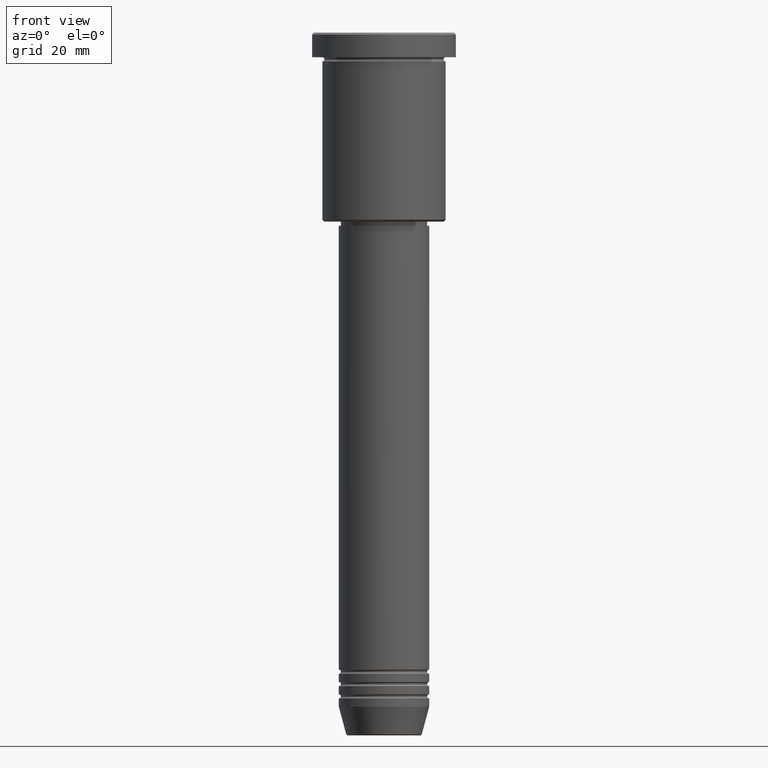
[diagram: clean part render]
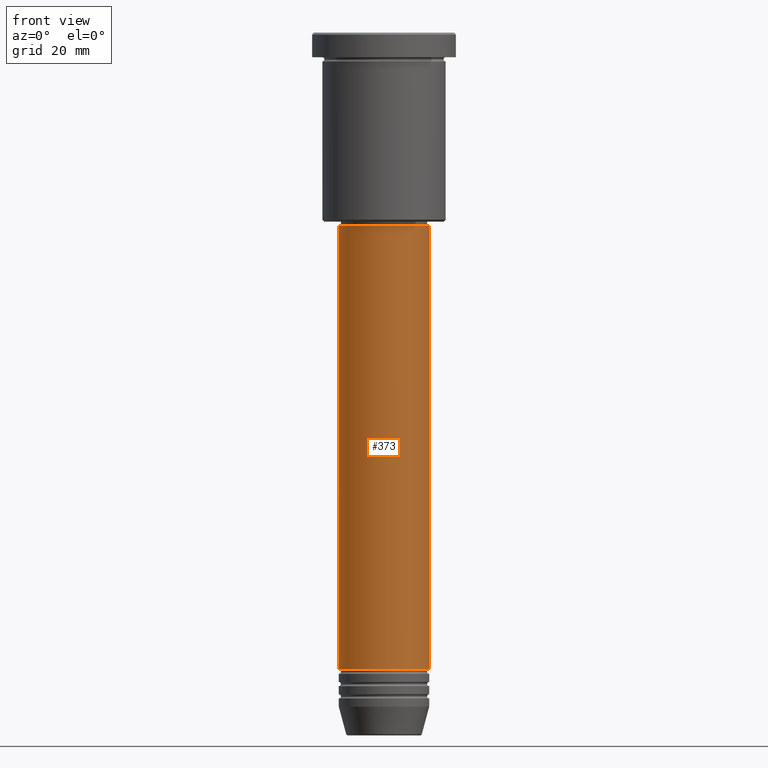
[diagram: same view with one face highlighted and labeled with its STEP entity id]
A machine part, front view. The second image highlights one B-rep face of the part: STEP entity #373.
In plain terms, the highlighted cylindrical surface (partial cylindrical patch) has radius 11 mm, axis along (-0, -0, 1).
Its self-contained STEP definition (entity closure, byte-faithful):
#10 = DIRECTION ( 'NONE',  ( -0.000000000000000000, -0.000000000000000000, 1.000000000000000000 ) ) ;
#16 = CARTESIAN_POINT ( 'NONE',  ( 11.00000000000000000, 0.000000000000000000, 0.000000000000000000 ) ) ;
#25 = DIRECTION ( 'NONE',  ( -0.000000000000000000, -0.000000000000000000, 1.000000000000000000 ) ) ;
#32 = ORIENTED_EDGE ( 'NONE', *, *, #535, .F. ) ;
#185 = LINE ( 'NONE', #16, #390 ) ;
#219 = CARTESIAN_POINT ( 'NONE',  ( 0.000000000000000000, 0.000000000000000000, -154.9999999999999716 ) ) ;
#279 = VERTEX_POINT ( 'NONE', #656 ) ;
#292 = DIRECTION ( 'NONE',  ( 1.000000000000000000, 0.000000000000000000, 0.000000000000000000 ) ) ;
#309 = CIRCLE ( 'NONE', #526, 11.00000000000000000 ) ;
#315 = DIRECTION ( 'NONE',  ( 1.000000000000000000, 0.000000000000000000, 0.000000000000000000 ) ) ;
#373 = ADVANCED_FACE ( 'NONE', ( #1087 ), #829, .T. ) ;
#390 = VECTOR ( 'NONE', #745, 1000.000000000000000 ) ;
#395 = EDGE_LOOP ( 'NONE', ( #32, #752, #1164, #519 ) ) ;
#396 = EDGE_CURVE ( 'NONE', #279, #805, #185, .T. ) ;
#455 = EDGE_CURVE ( 'NONE', #673, #805, #309, .T. ) ;
#463 = EDGE_CURVE ( 'NONE', #917, #279, #807, .T. ) ;
#472 = DIRECTION ( 'NONE',  ( 1.000000000000000000, 0.000000000000000000, 0.000000000000000000 ) ) ;
#486 = CARTESIAN_POINT ( 'NONE',  ( -11.00000000000000000, 1.347111479062088405E-15, -47.00000000000000711 ) ) ;
#487 = AXIS2_PLACEMENT_3D ( 'NONE', #219, #1043, #315 ) ;
#494 = CARTESIAN_POINT ( 'NONE',  ( 11.00000000000000000, 0.000000000000000000, -47.00000000000000711 ) ) ;
#519 = ORIENTED_EDGE ( 'NONE', *, *, #455, .F. ) ;
#526 = AXIS2_PLACEMENT_3D ( 'NONE', #963, #25, #292 ) ;
#535 = EDGE_CURVE ( 'NONE', #917, #673, #1039, .T. ) ;
#656 = CARTESIAN_POINT ( 'NONE',  ( 11.00000000000000000, 0.000000000000000000, -154.9999999999999716 ) ) ;
#660 = VECTOR ( 'NONE', #1034, 1000.000000000000000 ) ;
#673 = VERTEX_POINT ( 'NONE', #486 ) ;
#736 = AXIS2_PLACEMENT_3D ( 'NONE', #843, #10, #472 ) ;
#745 = DIRECTION ( 'NONE',  ( -0.000000000000000000, -0.000000000000000000, 1.000000000000000000 ) ) ;
#752 = ORIENTED_EDGE ( 'NONE', *, *, #463, .T. ) ;
#775 = CARTESIAN_POINT ( 'NONE',  ( -11.00000000000000000, 1.347111479062088405E-15, 0.000000000000000000 ) ) ;
#805 = VERTEX_POINT ( 'NONE', #494 ) ;
#807 = CIRCLE ( 'NONE', #487, 11.00000000000000000 ) ;
#828 = CARTESIAN_POINT ( 'NONE',  ( -11.00000000000000000, 1.347111479062088405E-15, -154.9999999999999716 ) ) ;
#829 = CYLINDRICAL_SURFACE ( 'NONE', #736, 11.00000000000000000 ) ;
#843 = CARTESIAN_POINT ( 'NONE',  ( 0.000000000000000000, 0.000000000000000000, 0.000000000000000000 ) ) ;
#917 = VERTEX_POINT ( 'NONE', #828 ) ;
#963 = CARTESIAN_POINT ( 'NONE',  ( 0.000000000000000000, 0.000000000000000000, -47.00000000000000711 ) ) ;
#1034 = DIRECTION ( 'NONE',  ( -0.000000000000000000, -0.000000000000000000, 1.000000000000000000 ) ) ;
#1039 = LINE ( 'NONE', #775, #660 ) ;
#1043 = DIRECTION ( 'NONE',  ( -0.000000000000000000, -0.000000000000000000, 1.000000000000000000 ) ) ;
#1087 = FACE_OUTER_BOUND ( 'NONE', #395, .T. ) ;
#1164 = ORIENTED_EDGE ( 'NONE', *, *, #396, .T. ) ;